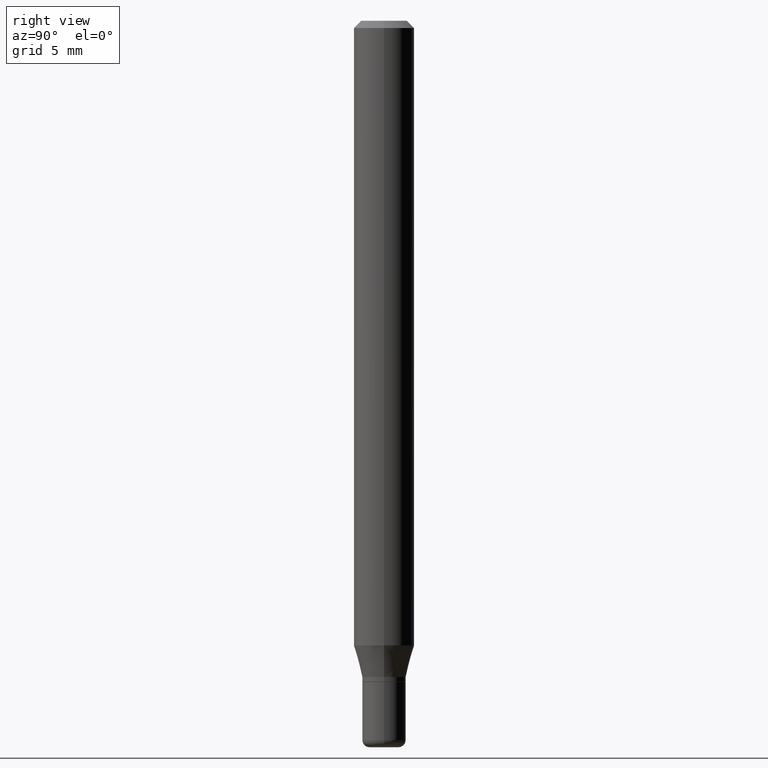
[diagram: clean part render]
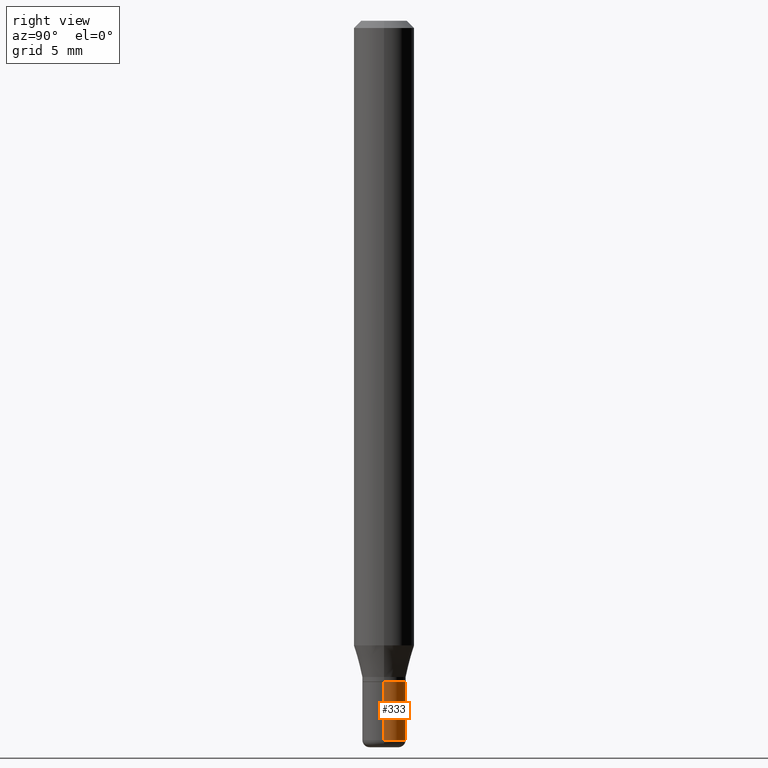
[diagram: same view with one face highlighted and labeled with its STEP entity id]
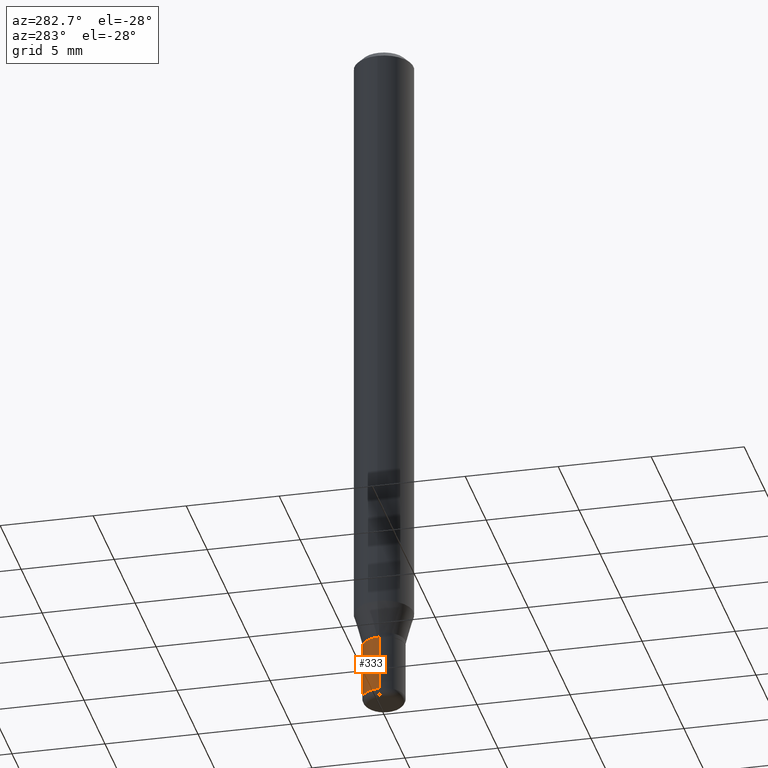
[diagram: same view with one face highlighted and labeled with its STEP entity id]
A machine part, right view. The second image highlights one B-rep face of the part: STEP entity #333.
A second angle (auxiliary view) of the same face is appended — the face is thin or edge-on in the first view.
In plain terms, the highlighted cylindrical surface (edge-blend (fillet) strip) has radius 1.143 mm, axis along (-0, 0, 1).
Its self-contained STEP definition (entity closure, byte-faithful):
#5 = LINE ( 'NONE', #478, #329 ) ;
#27 = ORIENTED_EDGE ( 'NONE', *, *, #273, .F. ) ;
#36 = DIRECTION ( 'NONE',  ( 1.000000000000000000, -6.982962677686270655E-15, 0.000000000000000000 ) ) ;
#54 = VERTEX_POINT ( 'NONE', #332 ) ;
#61 = DIRECTION ( 'NONE',  ( -2.445468806185136597E-29, 3.491481338843145583E-15, 1.000000000000000000 ) ) ;
#67 = CARTESIAN_POINT ( 'NONE',  ( 0.000000000000000000, 0.000000000000000000, 0.000000000000000000 ) ) ;
#108 = CARTESIAN_POINT ( 'NONE',  ( 0.04499999999999998446, -5.499083108677953967E-15, -1.485000000000000098 ) ) ;
#115 = VECTOR ( 'NONE', #202, 39.37007874015748143 ) ;
#120 = EDGE_CURVE ( 'NONE', #153, #421, #5, .T. ) ;
#142 = EDGE_CURVE ( 'NONE', #309, #54, #488, .T. ) ;
#153 = VERTEX_POINT ( 'NONE', #518 ) ;
#182 = CIRCLE ( 'NONE', #441, 0.04499999999999999833 ) ;
#185 = CYLINDRICAL_SURFACE ( 'NONE', #250, 0.04499999999999999140 ) ;
#202 = DIRECTION ( 'NONE',  ( -2.445468806185136877E-29, 3.491481338843145188E-15, 1.000000000000000000 ) ) ;
#215 = ORIENTED_EDGE ( 'NONE', *, *, #120, .T. ) ;
#223 = DIRECTION ( 'NONE',  ( 1.000000000000000000, -6.982962677686269077E-15, 0.000000000000000000 ) ) ;
#236 = CARTESIAN_POINT ( 'NONE',  ( 3.631521177184928138E-29, -5.184849788182071492E-15, -1.485000000000000098 ) ) ;
#250 = AXIS2_PLACEMENT_3D ( 'NONE', #67, #425, #339 ) ;
#263 = FACE_OUTER_BOUND ( 'NONE', #454, .T. ) ;
#271 = CARTESIAN_POINT ( 'NONE',  ( -0.04499999999999999833, -4.655616676759437807E-15, -1.364999999999999991 ) ) ;
#273 = EDGE_CURVE ( 'NONE', #54, #421, #182, .T. ) ;
#304 = CIRCLE ( 'NONE', #415, 0.04499999999999998446 ) ;
#309 = VERTEX_POINT ( 'NONE', #108 ) ;
#324 = CARTESIAN_POINT ( 'NONE',  ( 0.04499999999999999140, -3.142333204958819329E-16, 2.194279549108170616E-30 ) ) ;
#329 = VECTOR ( 'NONE', #404, 39.37007874015748143 ) ;
#332 = CARTESIAN_POINT ( 'NONE',  ( 0.04499999999999999833, -5.080105348016775756E-15, -1.364999999999999991 ) ) ;
#333 = ADVANCED_FACE ( 'NONE', ( #263 ), #185, .T. ) ;
#337 = ORIENTED_EDGE ( 'NONE', *, *, #383, .T. ) ;
#339 = DIRECTION ( 'NONE',  ( 1.000000000000000000, -6.982962677686266711E-15, 4.876176775795935793E-29 ) ) ;
#351 = ORIENTED_EDGE ( 'NONE', *, *, #142, .F. ) ;
#382 = CARTESIAN_POINT ( 'NONE',  ( 3.338064920442711836E-29, -4.765872027520893280E-15, -1.364999999999999991 ) ) ;
#383 = EDGE_CURVE ( 'NONE', #309, #153, #304, .T. ) ;
#395 = DIRECTION ( 'NONE',  ( -2.445468806185136597E-29, 3.491481338843145583E-15, 1.000000000000000000 ) ) ;
#404 = DIRECTION ( 'NONE',  ( -2.445468806185136877E-29, 3.491481338843145188E-15, 1.000000000000000000 ) ) ;
#415 = AXIS2_PLACEMENT_3D ( 'NONE', #236, #395, #36 ) ;
#421 = VERTEX_POINT ( 'NONE', #271 ) ;
#425 = DIRECTION ( 'NONE',  ( -2.445468806185136597E-29, 3.491481338843145583E-15, 1.000000000000000000 ) ) ;
#441 = AXIS2_PLACEMENT_3D ( 'NONE', #382, #61, #223 ) ;
#454 = EDGE_LOOP ( 'NONE', ( #337, #215, #27, #351 ) ) ;
#478 = CARTESIAN_POINT ( 'NONE',  ( -0.04499999999999999140, 3.197442310920450225E-16, -2.213520790614707209E-30 ) ) ;
#488 = LINE ( 'NONE', #324, #115 ) ;
#518 = CARTESIAN_POINT ( 'NONE',  ( -0.04499999999999998446, -4.655616676759437807E-15, -1.485000000000000098 ) ) ;